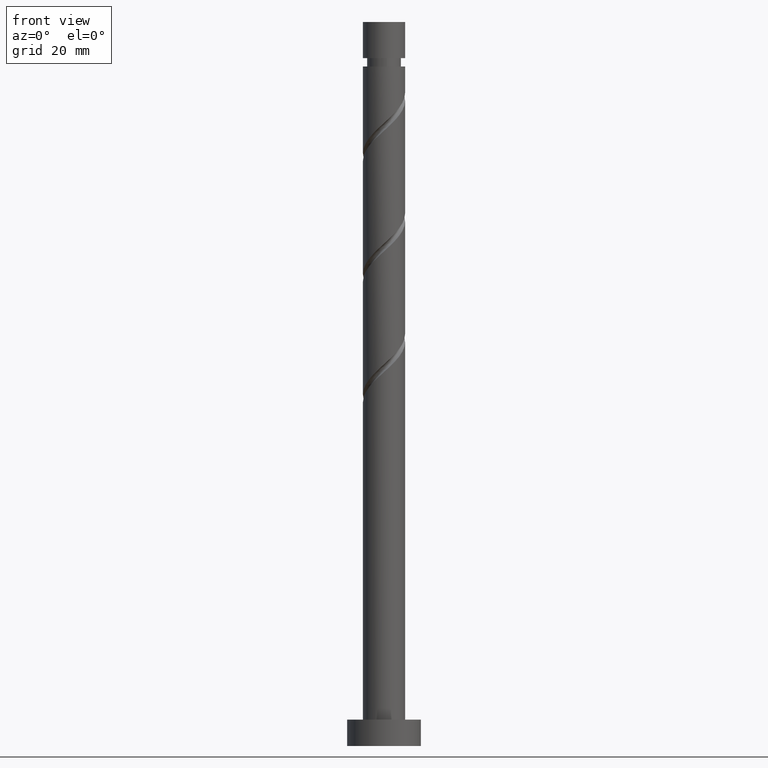
[diagram: clean part render]
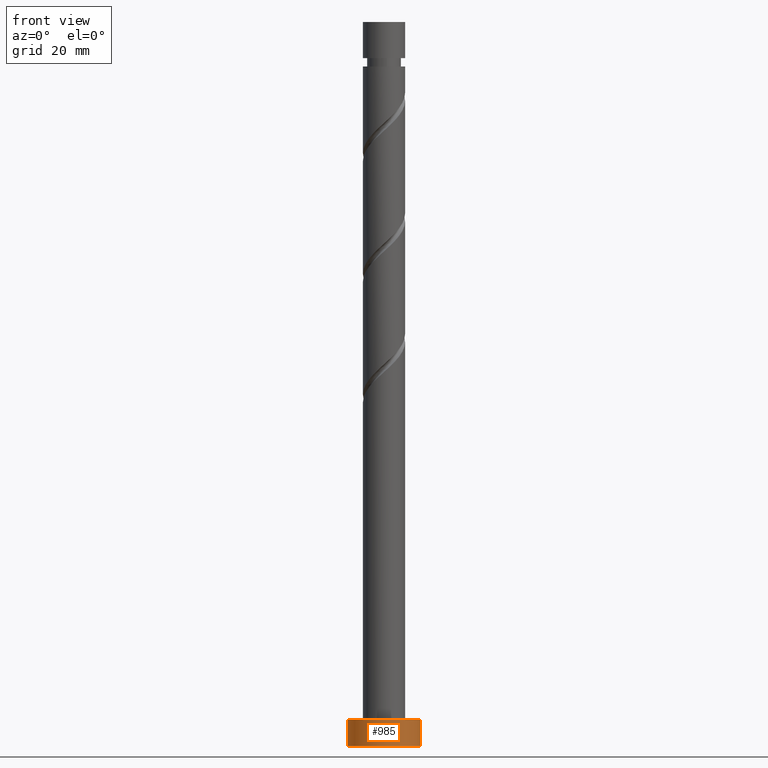
[diagram: same view with one face highlighted and labeled with its STEP entity id]
A machine part, front view. The second image highlights one B-rep face of the part: STEP entity #985.
In plain terms, the highlighted cylindrical surface (partial cylindrical patch) has radius 7 mm, axis along (-0, -0, -1).
Its self-contained STEP definition (entity closure, byte-faithful):
#68 = DIRECTION ( 'NONE',  ( -0.000000000000000000, -0.000000000000000000, -1.000000000000000000 ) ) ;
#98 = EDGE_CURVE ( 'NONE', #1255, #620, #257, .T. ) ;
#102 = DIRECTION ( 'NONE',  ( 1.000000000000000000, 0.000000000000000000, 0.000000000000000000 ) ) ;
#108 = AXIS2_PLACEMENT_3D ( 'NONE', #1507, #1496, #295 ) ;
#189 = DIRECTION ( 'NONE',  ( -0.000000000000000000, -0.000000000000000000, -1.000000000000000000 ) ) ;
#234 = CARTESIAN_POINT ( 'NONE',  ( 0.000000000000000000, 0.000000000000000000, 0.000000000000000000 ) ) ;
#257 = CIRCLE ( 'NONE', #108, 7.000000000000000000 ) ;
#295 = DIRECTION ( 'NONE',  ( 1.000000000000000000, 0.000000000000000000, 0.000000000000000000 ) ) ;
#306 = FACE_OUTER_BOUND ( 'NONE', #636, .T. ) ;
#359 = ORIENTED_EDGE ( 'NONE', *, *, #1362, .T. ) ;
#435 = DIRECTION ( 'NONE',  ( -1.000000000000000000, 0.000000000000000000, 0.000000000000000000 ) ) ;
#442 = CYLINDRICAL_SURFACE ( 'NONE', #1372, 7.000000000000000000 ) ;
#458 = VECTOR ( 'NONE', #1458, 1000.000000000000000 ) ;
#505 = CARTESIAN_POINT ( 'NONE',  ( -7.000000000000000000, 0.000000000000000000, 5.000000000000000000 ) ) ;
#536 = EDGE_CURVE ( 'NONE', #1255, #1421, #1062, .T. ) ;
#608 = CARTESIAN_POINT ( 'NONE',  ( 7.000000000000000000, 8.572527594031473190E-16, 0.000000000000000000 ) ) ;
#620 = VERTEX_POINT ( 'NONE', #667 ) ;
#636 = EDGE_LOOP ( 'NONE', ( #1464, #961, #876, #359 ) ) ;
#667 = CARTESIAN_POINT ( 'NONE',  ( 7.000000000000000000, 8.572527594031473190E-16, 5.000000000000000000 ) ) ;
#783 = AXIS2_PLACEMENT_3D ( 'NONE', #234, #981, #102 ) ;
#786 = CARTESIAN_POINT ( 'NONE',  ( 0.000000000000000000, 0.000000000000000000, 5.000000000000000000 ) ) ;
#860 = CARTESIAN_POINT ( 'NONE',  ( 7.000000000000000000, 8.572527594031473190E-16, 5.000000000000000000 ) ) ;
#876 = ORIENTED_EDGE ( 'NONE', *, *, #536, .T. ) ;
#961 = ORIENTED_EDGE ( 'NONE', *, *, #98, .F. ) ;
#975 = LINE ( 'NONE', #860, #458 ) ;
#981 = DIRECTION ( 'NONE',  ( 0.000000000000000000, 0.000000000000000000, 1.000000000000000000 ) ) ;
#985 = ADVANCED_FACE ( 'NONE', ( #306 ), #442, .T. ) ;
#1062 = LINE ( 'NONE', #1160, #1498 ) ;
#1160 = CARTESIAN_POINT ( 'NONE',  ( -7.000000000000000000, 0.000000000000000000, 5.000000000000000000 ) ) ;
#1255 = VERTEX_POINT ( 'NONE', #505 ) ;
#1325 = VERTEX_POINT ( 'NONE', #608 ) ;
#1362 = EDGE_CURVE ( 'NONE', #1421, #1325, #1477, .T. ) ;
#1372 = AXIS2_PLACEMENT_3D ( 'NONE', #786, #189, #435 ) ;
#1421 = VERTEX_POINT ( 'NONE', #1553 ) ;
#1458 = DIRECTION ( 'NONE',  ( -0.000000000000000000, -0.000000000000000000, -1.000000000000000000 ) ) ;
#1464 = ORIENTED_EDGE ( 'NONE', *, *, #1483, .F. ) ;
#1477 = CIRCLE ( 'NONE', #783, 7.000000000000000000 ) ;
#1483 = EDGE_CURVE ( 'NONE', #620, #1325, #975, .T. ) ;
#1496 = DIRECTION ( 'NONE',  ( 0.000000000000000000, 0.000000000000000000, 1.000000000000000000 ) ) ;
#1498 = VECTOR ( 'NONE', #68, 1000.000000000000000 ) ;
#1507 = CARTESIAN_POINT ( 'NONE',  ( 0.000000000000000000, 0.000000000000000000, 5.000000000000000000 ) ) ;
#1553 = CARTESIAN_POINT ( 'NONE',  ( -7.000000000000000000, 0.000000000000000000, 0.000000000000000000 ) ) ;